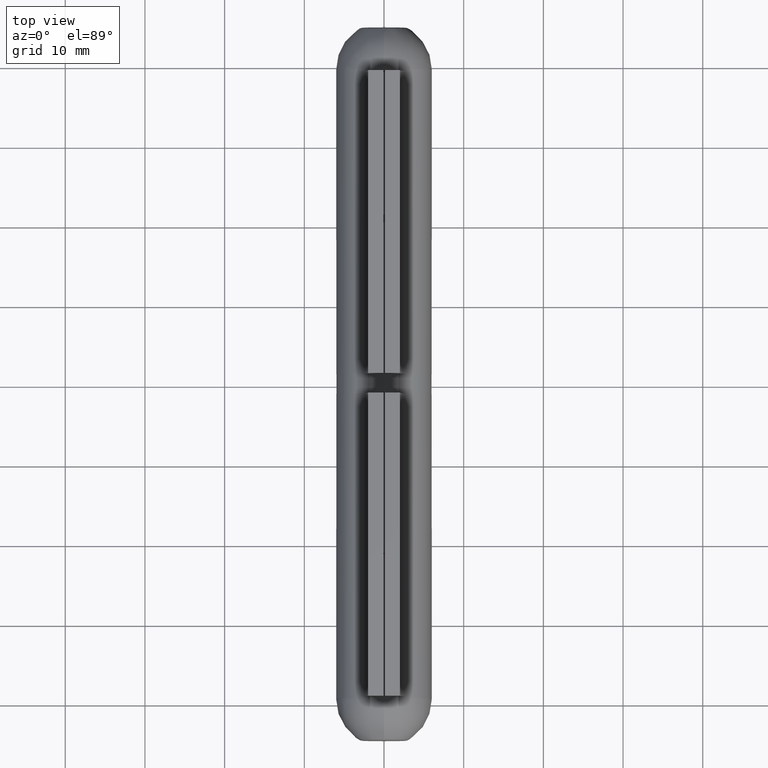
[diagram: clean part render]
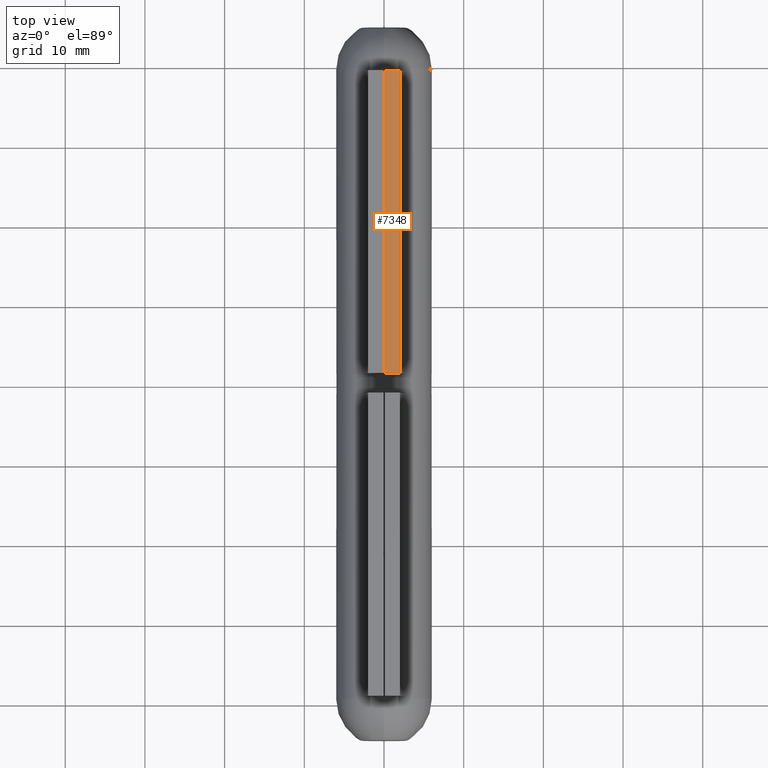
[diagram: same view with one face highlighted and labeled with its STEP entity id]
A machine part, top view. The second image highlights one B-rep face of the part: STEP entity #7348.
In plain terms, the highlighted planar face has unit normal (0, 0, -1).
Its self-contained STEP definition (entity closure, byte-faithful):
#413 = ORIENTED_EDGE ( 'NONE', *, *, #2352, .F. ) ;
#580 = CARTESIAN_POINT ( 'NONE',  ( 2.000000000000001332, -19.00000000000000000, 10.50000000000000000 ) ) ;
#1422 = CARTESIAN_POINT ( 'NONE',  ( 2.000000000000001332, 19.00000000000000000, 10.50000000000000000 ) ) ;
#1858 = CARTESIAN_POINT ( 'NONE',  ( 2.000000000000001332, 19.00000000000000000, 10.50000000000000000 ) ) ;
#2083 = CARTESIAN_POINT ( 'NONE',  ( 0.1000000000000009076, 19.00000000000000000, 10.50000000000000000 ) ) ;
#2352 = EDGE_CURVE ( 'NONE', #8869, #7066, #6135, .T. ) ;
#2733 = EDGE_CURVE ( 'NONE', #7531, #11504, #11847, .T. ) ;
#2805 = EDGE_LOOP ( 'NONE', ( #4629, #9335, #413, #7408 ) ) ;
#2952 = DIRECTION ( 'NONE',  ( 0.000000000000000000, 0.000000000000000000, -1.000000000000000000 ) ) ;
#3979 = LINE ( 'NONE', #1858, #11444 ) ;
#4165 = PLANE ( 'NONE',  #12340 ) ;
#4629 = ORIENTED_EDGE ( 'NONE', *, *, #2733, .T. ) ;
#5456 = VECTOR ( 'NONE', #8946, 1000.000000000000000 ) ;
#5726 = VECTOR ( 'NONE', #13209, 1000.000000000000000 ) ;
#6135 = LINE ( 'NONE', #2083, #5456 ) ;
#6843 = CARTESIAN_POINT ( 'NONE',  ( 0.1000000000000009076, 19.00000000000000000, 10.50000000000000000 ) ) ;
#7066 = VERTEX_POINT ( 'NONE', #1422 ) ;
#7348 = ADVANCED_FACE ( 'NONE', ( #7533 ), #4165, .F. ) ;
#7408 = ORIENTED_EDGE ( 'NONE', *, *, #11725, .T. ) ;
#7495 = LINE ( 'NONE', #11081, #5726 ) ;
#7531 = VERTEX_POINT ( 'NONE', #7708 ) ;
#7533 = FACE_OUTER_BOUND ( 'NONE', #2805, .T. ) ;
#7708 = CARTESIAN_POINT ( 'NONE',  ( 0.1000000000000009076, -19.00000000000000000, 10.50000000000000000 ) ) ;
#8593 = DIRECTION ( 'NONE',  ( -1.000000000000000000, 0.000000000000000000, -0.000000000000000000 ) ) ;
#8792 = VECTOR ( 'NONE', #8988, 1000.000000000000000 ) ;
#8869 = VERTEX_POINT ( 'NONE', #6843 ) ;
#8946 = DIRECTION ( 'NONE',  ( 1.000000000000000000, 0.000000000000000000, 0.000000000000000000 ) ) ;
#8988 = DIRECTION ( 'NONE',  ( 1.000000000000000000, 0.000000000000000000, 0.000000000000000000 ) ) ;
#9335 = ORIENTED_EDGE ( 'NONE', *, *, #10556, .F. ) ;
#9902 = CARTESIAN_POINT ( 'NONE',  ( 0.1000000000000009076, 19.00000000000000000, 10.50000000000000000 ) ) ;
#10556 = EDGE_CURVE ( 'NONE', #7066, #11504, #3979, .T. ) ;
#10992 = DIRECTION ( 'NONE',  ( -0.000000000000000000, -1.000000000000000000, -0.000000000000000000 ) ) ;
#11081 = CARTESIAN_POINT ( 'NONE',  ( 0.1000000000000009076, 19.00000000000000000, 10.50000000000000000 ) ) ;
#11444 = VECTOR ( 'NONE', #10992, 1000.000000000000000 ) ;
#11504 = VERTEX_POINT ( 'NONE', #580 ) ;
#11725 = EDGE_CURVE ( 'NONE', #8869, #7531, #7495, .T. ) ;
#11847 = LINE ( 'NONE', #12350, #8792 ) ;
#12340 = AXIS2_PLACEMENT_3D ( 'NONE', #9902, #2952, #8593 ) ;
#12350 = CARTESIAN_POINT ( 'NONE',  ( 0.1000000000000009076, -19.00000000000000000, 10.50000000000000000 ) ) ;
#13209 = DIRECTION ( 'NONE',  ( -0.000000000000000000, -1.000000000000000000, -0.000000000000000000 ) ) ;